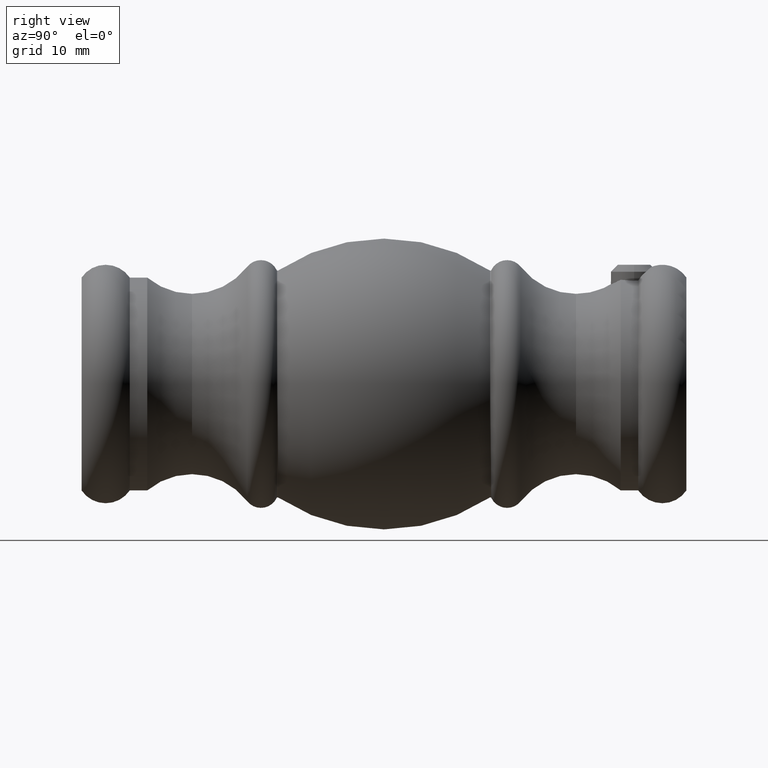
[diagram: clean part render]
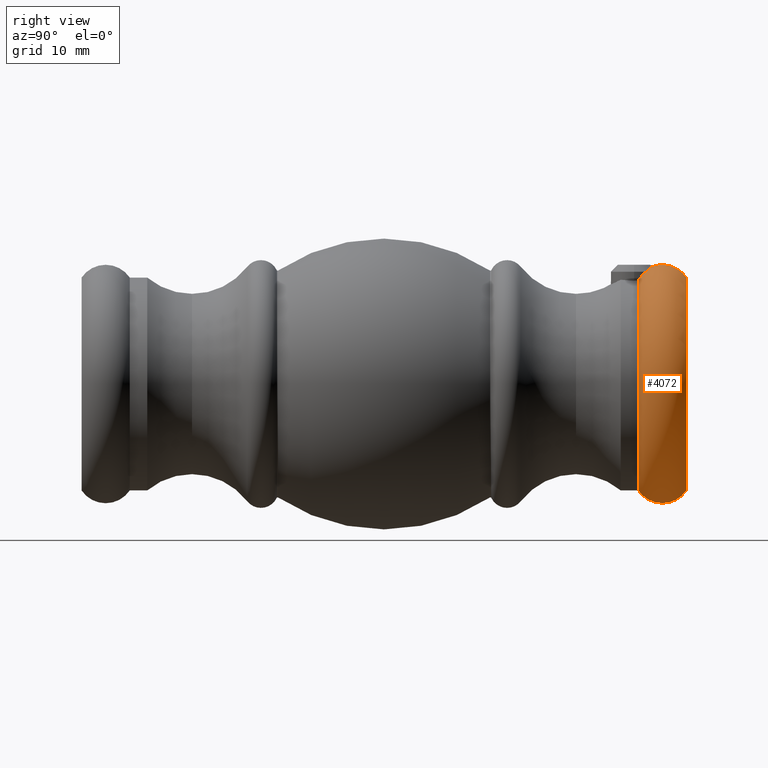
[diagram: same view with one face highlighted and labeled with its STEP entity id]
A machine part, right view. The second image highlights one B-rep face of the part: STEP entity #4072.
In plain terms, the highlighted toroidal blend (fillet) surface has major radius 7.75 mm and minor (blend) radius 2.5 mm.
Its self-contained STEP definition (entity closure, byte-faithful):
#233 = ORIENTED_EDGE ( 'NONE', *, *, #1522, .F. ) ;
#854 = VERTEX_POINT ( 'NONE', #10589 ) ;
#925 = CARTESIAN_POINT ( 'NONE',  ( 1.540193022093128361, 22.11379103470625651, 9.354721436466750362 ) ) ;
#952 = CARTESIAN_POINT ( 'NONE',  ( 0.000000000000000000, 23.92876848227920306, 7.750000000000000000 ) ) ;
#1015 = AXIS2_PLACEMENT_3D ( 'NONE', #952, #3144, #3094 ) ;
#1031 = DIRECTION ( 'NONE',  ( -0.000000000000000000, 1.000000000000000000, -0.000000000000000000 ) ) ;
#1062 = CARTESIAN_POINT ( 'NONE',  ( -4.115869782304869735E-20, 23.14999999999999147, 10.12560932204950959 ) ) ;
#1176 = ORIENTED_EDGE ( 'NONE', *, *, #12549, .T. ) ;
#1182 = CARTESIAN_POINT ( 'NONE',  ( 0.000000000000000000, 26.00000000000000000, 0.000000000000000000 ) ) ;
#1185 = EDGE_CURVE ( 'NONE', #8133, #1998, #9551, .T. ) ;
#1230 = DIRECTION ( 'NONE',  ( -0.000000000000000000, 1.000000000000000000, -0.000000000000000000 ) ) ;
#1522 = EDGE_CURVE ( 'NONE', #10935, #12062, #5928, .T. ) ;
#1951 = CARTESIAN_POINT ( 'NONE',  ( 0.5313457676211335023, 23.06573017072467380, 10.08321473871191820 ) ) ;
#1998 = VERTEX_POINT ( 'NONE', #6573 ) ;
#2053 = CARTESIAN_POINT ( 'NONE',  ( 1.610797106706591153, 21.85753696455840611, 9.007099015833327726 ) ) ;
#2180 = DIRECTION ( 'NONE',  ( 0.000000000000000000, 0.000000000000000000, 1.000000000000000000 ) ) ;
#2225 = CARTESIAN_POINT ( 'NONE',  ( 9.491012693391987787E-16, 23.92876848227920306, -7.750000000000000000 ) ) ;
#2514 = CIRCLE ( 'NONE', #10824, 9.150000000000000355 ) ;
#3094 = DIRECTION ( 'NONE',  ( 0.000000000000000000, 0.000000000000000000, 1.000000000000000000 ) ) ;
#3144 = DIRECTION ( 'NONE',  ( -1.000000000000000000, 0.000000000000000000, 0.000000000000000000 ) ) ;
#3348 = DIRECTION ( 'NONE',  ( 1.224646799147353454E-16, 0.000000000000000000, -1.000000000000000000 ) ) ;
#4072 = ADVANCED_FACE ( 'NONE', ( #7788 ), #11235, .T. ) ;
#4297 = AXIS2_PLACEMENT_3D ( 'NONE', #2225, #14307, #3348 ) ;
#4567 = DIRECTION ( 'NONE',  ( 0.000000000000000000, 0.000000000000000000, 1.000000000000000000 ) ) ;
#5884 = DIRECTION ( 'NONE',  ( 0.000000000000000000, 0.000000000000000000, 1.000000000000000000 ) ) ;
#5928 = CIRCLE ( 'NONE', #1015, 2.499999999999998668 ) ;
#6152 = B_SPLINE_CURVE_WITH_KNOTS ( 'NONE', 3,
 ( #9923, #14216, #9818, #7689, #1951, #7592, #13199, #9721, #6568, #925, #8721, #2053 ),
 .UNSPECIFIED., .F., .F.,
 ( 4, 2, 2, 2, 2, 4 ),
 ( 0.002591377530908866092, 0.002914409624965053416, 0.003237441719021241174, 0.003883505907133620594, 0.004529570095245999579, 0.005175634283358378565 ),
 .UNSPECIFIED. ) ;
#6416 = EDGE_LOOP ( 'NONE', ( #1176, #9823, #11640, #233, #7962 ) ) ;
#6568 = CARTESIAN_POINT ( 'NONE',  ( 1.390773253516272456, 22.40259832533298479, 9.640257426911503558 ) ) ;
#6573 = CARTESIAN_POINT ( 'NONE',  ( 1.120551821219828341E-15, 26.00000000000000000, -9.150000000000000355 ) ) ;
#7263 = EDGE_CURVE ( 'NONE', #12062, #1998, #2514, .T. ) ;
#7512 = CIRCLE ( 'NONE', #12891, 9.150000000000000355 ) ;
#7592 = CARTESIAN_POINT ( 'NONE',  ( 0.8266194955690574497, 22.94379963245972931, 10.01736910086969168 ) ) ;
#7689 = CARTESIAN_POINT ( 'NONE',  ( 0.4291985345188015222, 23.09685439546118246, 10.09907128653580877 ) ) ;
#7691 = CARTESIAN_POINT ( 'NONE',  ( 0.000000000000000000, 23.92876848227920306, 0.000000000000000000 ) ) ;
#7788 = FACE_OUTER_BOUND ( 'NONE', #6416, .T. ) ;
#7835 = AXIS2_PLACEMENT_3D ( 'NONE', #7691, #1031, #2180 ) ;
#7962 = ORIENTED_EDGE ( 'NONE', *, *, #11797, .T. ) ;
#8133 = VERTEX_POINT ( 'NONE', #11424 ) ;
#8721 = CARTESIAN_POINT ( 'NONE',  ( 1.584619912744754000, 21.97547203834362151, 9.189027800696399240 ) ) ;
#9551 = CIRCLE ( 'NONE', #4297, 2.499999999999998668 ) ;
#9721 = CARTESIAN_POINT ( 'NONE',  ( 1.284325860574961453, 22.55422157866141220, 9.761077212738825892 ) ) ;
#9818 = CARTESIAN_POINT ( 'NONE',  ( 0.2174649309595426128, 23.13916574700044748, 10.12035612891865455 ) ) ;
#9823 = ORIENTED_EDGE ( 'NONE', *, *, #1185, .T. ) ;
#9923 = CARTESIAN_POINT ( 'NONE',  ( -4.115869782304869735E-20, 23.14999999999999147, 10.12560932204950959 ) ) ;
#10328 = DIRECTION ( 'NONE',  ( -0.000000000000000000, 1.000000000000000000, -0.000000000000000000 ) ) ;
#10342 = CARTESIAN_POINT ( 'NONE',  ( 0.000000000000000000, 26.00000000000000000, 9.150000000000000355 ) ) ;
#10589 = CARTESIAN_POINT ( 'NONE',  ( 1.610797106706591153, 21.85753696455840611, 9.007099015833327726 ) ) ;
#10824 = AXIS2_PLACEMENT_3D ( 'NONE', #1182, #1230, #4567 ) ;
#10935 = VERTEX_POINT ( 'NONE', #1062 ) ;
#11235 = TOROIDAL_SURFACE ( 'NONE', #7835, 7.750000000000000000, 2.499999999999999112 ) ;
#11424 = CARTESIAN_POINT ( 'NONE',  ( 1.120551821219828341E-15, 21.85753696455840611, -9.150000000000000355 ) ) ;
#11640 = ORIENTED_EDGE ( 'NONE', *, *, #7263, .F. ) ;
#11797 = EDGE_CURVE ( 'NONE', #10935, #854, #6152, .T. ) ;
#12062 = VERTEX_POINT ( 'NONE', #10342 ) ;
#12549 = EDGE_CURVE ( 'NONE', #854, #8133, #7512, .T. ) ;
#12891 = AXIS2_PLACEMENT_3D ( 'NONE', #13514, #10328, #5884 ) ;
#13199 = CARTESIAN_POINT ( 'NONE',  ( 1.001774017429222008, 22.82564130558032289, 9.949732773313527900 ) ) ;
#13514 = CARTESIAN_POINT ( 'NONE',  ( 0.000000000000000000, 21.85753696455840611, 0.000000000000000000 ) ) ;
#14216 = CARTESIAN_POINT ( 'NONE',  ( 0.1079577720566642501, 23.14999999999999503, 10.12560932204951136 ) ) ;
#14307 = DIRECTION ( 'NONE',  ( 1.000000000000000000, 0.000000000000000000, 1.224646799147353207E-16 ) ) ;